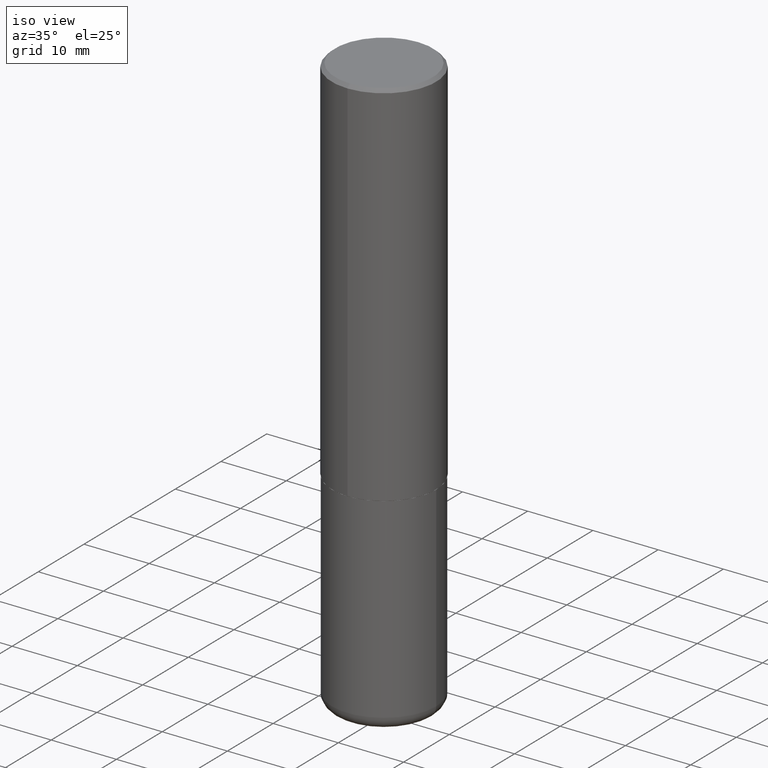
[diagram: clean part render]
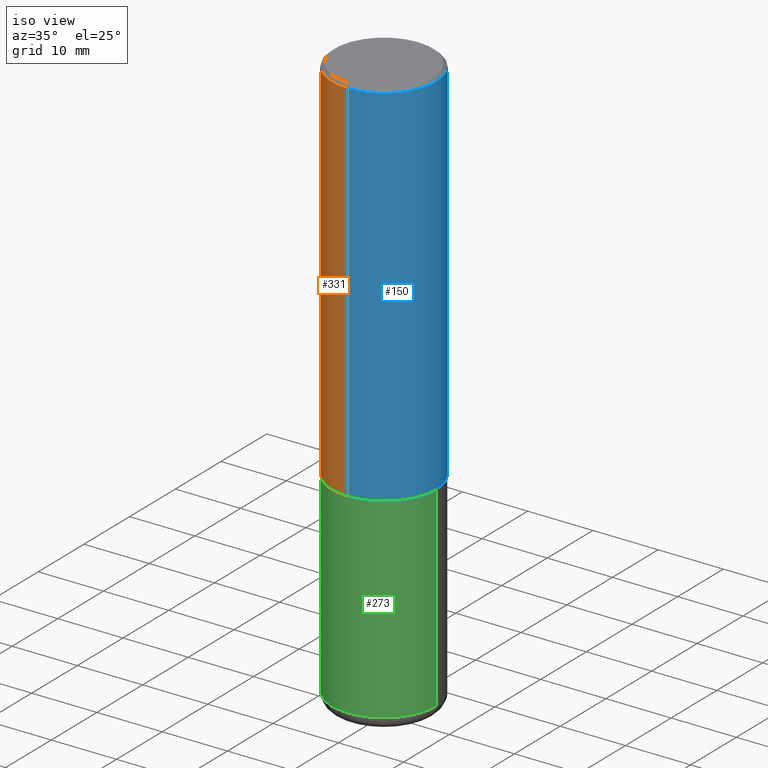
[diagram: same view with three faces highlighted in distinct colors, each labeled with its STEP entity id]
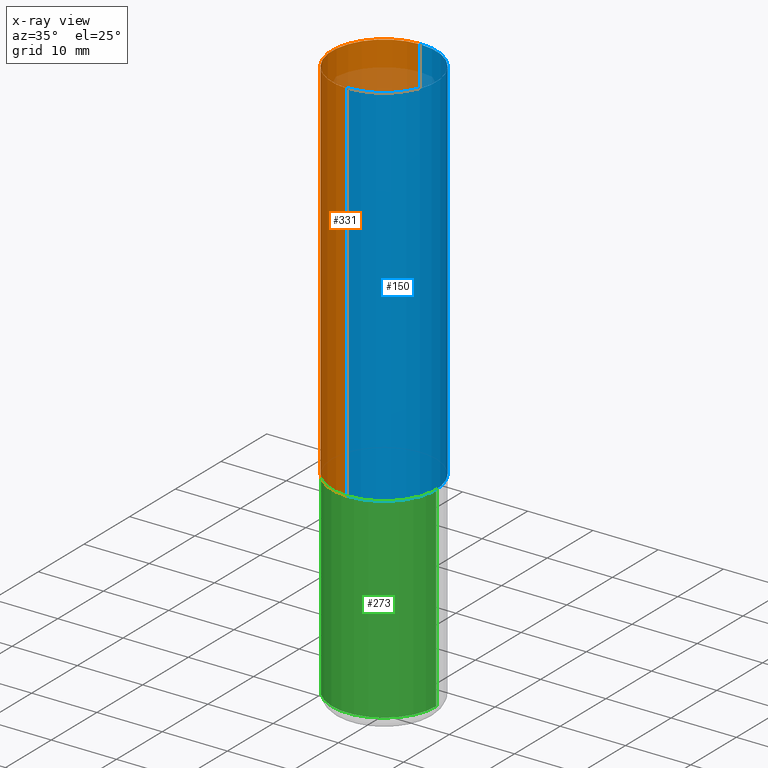
[diagram: x-ray of the same camera — body ghosted, the three highlighted faces saturated]
A machine part, iso view with three faces highlighted in distinct colors.
The next image is the same camera in x-ray (body ghosted, the three faces saturated) — at least one of them is partly hidden behind the body in this view.
Their STEP definitions:

[orange] entity #331 — the highlighted cylindrical surface (partial cylindrical patch) has radius 7.9997 mm, axis along (-0, 0, 1).
#16 = DIRECTION ( 'NONE',  ( -6.982962677686264344E-15, -1.000000000000000000, 3.492006451096414862E-15 ) ) ;
#30 = VECTOR ( 'NONE', #323, 39.37007874015748143 ) ;
#31 = ORIENTED_EDGE ( 'NONE', *, *, #237, .F. ) ;
#41 = CARTESIAN_POINT ( 'NONE',  ( 2.237854346276435985E-15, 0.3149500000000001743, -1.099807431772816467E-15 ) ) ;
#44 = AXIS2_PLACEMENT_3D ( 'NONE', #235, #201, #16 ) ;
#51 = VERTEX_POINT ( 'NONE', #356 ) ;
#54 = EDGE_CURVE ( 'NONE', #262, #51, #314, .T. ) ;
#84 = LINE ( 'NONE', #186, #30 ) ;
#88 = CARTESIAN_POINT ( 'NONE',  ( 2.237854346276464384E-15, 0.3149499999999924027, -2.243100000000000538 ) ) ;
#97 = FACE_OUTER_BOUND ( 'NONE', #156, .T. ) ;
#102 = VECTOR ( 'NONE', #173, 39.37007874015748143 ) ;
#135 = ORIENTED_EDGE ( 'NONE', *, *, #54, .T. ) ;
#154 = AXIS2_PLACEMENT_3D ( 'NONE', #245, #216, #292 ) ;
#156 = EDGE_LOOP ( 'NONE', ( #390, #135, #212, #31 ) ) ;
#158 = LINE ( 'NONE', #41, #102 ) ;
#173 = DIRECTION ( 'NONE',  ( -2.445102122258518808E-29, 3.492006451096415256E-15, 1.000000000000000000 ) ) ;
#186 = CARTESIAN_POINT ( 'NONE',  ( -2.199284095337290265E-15, -0.3149500000000001743, 1.099807431772816467E-15 ) ) ;
#197 = DIRECTION ( 'NONE',  ( -2.445102122258518808E-29, 3.492006451096415256E-15, 1.000000000000000000 ) ) ;
#201 = DIRECTION ( 'NONE',  ( -2.445102122258518808E-29, 3.492006451096415256E-15, 1.000000000000000000 ) ) ;
#203 = EDGE_CURVE ( 'NONE', #262, #274, #158, .T. ) ;
#212 = ORIENTED_EDGE ( 'NONE', *, *, #369, .T. ) ;
#216 = DIRECTION ( 'NONE',  ( -2.445102122258518808E-29, 3.492006451096415256E-15, 1.000000000000000000 ) ) ;
#225 = DIRECTION ( 'NONE',  ( -6.982962677686265922E-15, -1.000000000000000000, 3.469564049740290009E-15 ) ) ;
#235 = CARTESIAN_POINT ( 'NONE',  ( 0.000000000000000000, 0.000000000000000000, 0.000000000000000000 ) ) ;
#237 = EDGE_CURVE ( 'NONE', #274, #277, #345, .T. ) ;
#245 = CARTESIAN_POINT ( 'NONE',  ( 4.890204244517054362E-31, -6.984012902192854425E-17, -0.02000000000000006981 ) ) ;
#262 = VERTEX_POINT ( 'NONE', #88 ) ;
#274 = VERTEX_POINT ( 'NONE', #329 ) ;
#277 = VERTEX_POINT ( 'NONE', #404 ) ;
#292 = DIRECTION ( 'NONE',  ( -6.982962677686265922E-15, -1.000000000000000000, 3.496670018878889100E-15 ) ) ;
#295 = CARTESIAN_POINT ( 'NONE',  ( 5.484608570438081455E-29, -7.832919670454367656E-15, -2.243099999999999206 ) ) ;
#296 = AXIS2_PLACEMENT_3D ( 'NONE', #295, #197, #225 ) ;
#314 = CIRCLE ( 'NONE', #296, 0.3149500000000002853 ) ;
#323 = DIRECTION ( 'NONE',  ( -2.445102122258518808E-29, 3.492006451096415256E-15, 1.000000000000000000 ) ) ;
#329 = CARTESIAN_POINT ( 'NONE',  ( 2.199284095337289871E-15, 0.3149499999999999522, -0.02000000000000116962 ) ) ;
#331 = ADVANCED_FACE ( 'NONE', ( #97 ), #418, .T. ) ;
#345 = CIRCLE ( 'NONE', #154, 0.3149500000000000077 ) ;
#356 = CARTESIAN_POINT ( 'NONE',  ( -2.199284095337236228E-15, -0.3149500000000081124, -2.243099999999998317 ) ) ;
#369 = EDGE_CURVE ( 'NONE', #51, #277, #84, .T. ) ;
#390 = ORIENTED_EDGE ( 'NONE', *, *, #203, .F. ) ;
#404 = CARTESIAN_POINT ( 'NONE',  ( -2.160713844398143363E-15, -0.3149500000000000632, -0.01999999999999896652 ) ) ;
#418 = CYLINDRICAL_SURFACE ( 'NONE', #44, 0.3149500000000001743 ) ;

[blue] entity #150 — the highlighted cylindrical surface (partial cylindrical patch) has radius 7.9997 mm, axis along (-0, 0, 1).
#6 = DIRECTION ( 'NONE',  ( -2.445102122258518808E-29, 3.492006451096415256E-15, 1.000000000000000000 ) ) ;
#18 = DIRECTION ( 'NONE',  ( -2.445102122258518808E-29, 3.492006451096415256E-15, 1.000000000000000000 ) ) ;
#25 = CARTESIAN_POINT ( 'NONE',  ( 4.890204244517054362E-31, -6.984012902192854425E-17, -0.02000000000000006981 ) ) ;
#30 = VECTOR ( 'NONE', #323, 39.37007874015748143 ) ;
#41 = CARTESIAN_POINT ( 'NONE',  ( 2.237854346276435985E-15, 0.3149500000000001743, -1.099807431772816467E-15 ) ) ;
#51 = VERTEX_POINT ( 'NONE', #356 ) ;
#80 = CARTESIAN_POINT ( 'NONE',  ( 5.484608570438081455E-29, -7.832919670454367656E-15, -2.243099999999999206 ) ) ;
#84 = LINE ( 'NONE', #186, #30 ) ;
#88 = CARTESIAN_POINT ( 'NONE',  ( 2.237854346276464384E-15, 0.3149499999999924027, -2.243100000000000538 ) ) ;
#102 = VECTOR ( 'NONE', #173, 39.37007874015748143 ) ;
#117 = AXIS2_PLACEMENT_3D ( 'NONE', #236, #6, #400 ) ;
#150 = ADVANCED_FACE ( 'NONE', ( #169 ), #242, .T. ) ;
#158 = LINE ( 'NONE', #41, #102 ) ;
#169 = FACE_OUTER_BOUND ( 'NONE', #227, .T. ) ;
#173 = DIRECTION ( 'NONE',  ( -2.445102122258518808E-29, 3.492006451096415256E-15, 1.000000000000000000 ) ) ;
#186 = CARTESIAN_POINT ( 'NONE',  ( -2.199284095337290265E-15, -0.3149500000000001743, 1.099807431772816467E-15 ) ) ;
#187 = AXIS2_PLACEMENT_3D ( 'NONE', #80, #18, #349 ) ;
#190 = ORIENTED_EDGE ( 'NONE', *, *, #224, .F. ) ;
#203 = EDGE_CURVE ( 'NONE', #262, #274, #158, .T. ) ;
#224 = EDGE_CURVE ( 'NONE', #277, #274, #411, .T. ) ;
#227 = EDGE_LOOP ( 'NONE', ( #401, #388, #190, #264 ) ) ;
#236 = CARTESIAN_POINT ( 'NONE',  ( 0.000000000000000000, 0.000000000000000000, 0.000000000000000000 ) ) ;
#242 = CYLINDRICAL_SURFACE ( 'NONE', #117, 0.3149500000000001743 ) ;
#248 = DIRECTION ( 'NONE',  ( -6.982962677686265922E-15, -1.000000000000000000, 3.496670018878889100E-15 ) ) ;
#262 = VERTEX_POINT ( 'NONE', #88 ) ;
#264 = ORIENTED_EDGE ( 'NONE', *, *, #369, .F. ) ;
#274 = VERTEX_POINT ( 'NONE', #329 ) ;
#277 = VERTEX_POINT ( 'NONE', #404 ) ;
#323 = DIRECTION ( 'NONE',  ( -2.445102122258518808E-29, 3.492006451096415256E-15, 1.000000000000000000 ) ) ;
#329 = CARTESIAN_POINT ( 'NONE',  ( 2.199284095337289871E-15, 0.3149499999999999522, -0.02000000000000116962 ) ) ;
#349 = DIRECTION ( 'NONE',  ( -6.982962677686265922E-15, -1.000000000000000000, 3.469564049740290009E-15 ) ) ;
#356 = CARTESIAN_POINT ( 'NONE',  ( -2.199284095337236228E-15, -0.3149500000000081124, -2.243099999999998317 ) ) ;
#363 = DIRECTION ( 'NONE',  ( -2.445102122258518808E-29, 3.492006451096415256E-15, 1.000000000000000000 ) ) ;
#367 = CIRCLE ( 'NONE', #187, 0.3149500000000002853 ) ;
#369 = EDGE_CURVE ( 'NONE', #51, #277, #84, .T. ) ;
#385 = EDGE_CURVE ( 'NONE', #51, #262, #367, .T. ) ;
#388 = ORIENTED_EDGE ( 'NONE', *, *, #203, .T. ) ;
#397 = AXIS2_PLACEMENT_3D ( 'NONE', #25, #363, #248 ) ;
#400 = DIRECTION ( 'NONE',  ( -6.982962677686264344E-15, -1.000000000000000000, 3.492006451096414862E-15 ) ) ;
#401 = ORIENTED_EDGE ( 'NONE', *, *, #385, .T. ) ;
#404 = CARTESIAN_POINT ( 'NONE',  ( -2.160713844398143363E-15, -0.3149500000000000632, -0.01999999999999896652 ) ) ;
#411 = CIRCLE ( 'NONE', #397, 0.3149500000000000077 ) ;

[green] entity #273 — the highlighted cylindrical surface (partial cylindrical patch) has radius 7.9997 mm, axis along (-0, 0, 1).
#14 = CARTESIAN_POINT ( 'NONE',  ( 0.000000000000000000, 0.000000000000000000, 0.000000000000000000 ) ) ;
#40 = VERTEX_POINT ( 'NONE', #389 ) ;
#42 = ORIENTED_EDGE ( 'NONE', *, *, #66, .F. ) ;
#49 = CIRCLE ( 'NONE', #289, 0.3149500000000000077 ) ;
#53 = LINE ( 'NONE', #147, #103 ) ;
#63 = DIRECTION ( 'NONE',  ( -2.445468806185136597E-29, 3.491481338843145583E-15, 1.000000000000000000 ) ) ;
#66 = EDGE_CURVE ( 'NONE', #320, #40, #191, .T. ) ;
#99 = EDGE_LOOP ( 'NONE', ( #42, #229, #119, #271 ) ) ;
#103 = VECTOR ( 'NONE', #305, 39.37007874015748143 ) ;
#116 = CARTESIAN_POINT ( 'NONE',  ( 5.487876547960063631E-29, -7.835233272497900762E-15, -2.244099999999999540 ) ) ;
#119 = ORIENTED_EDGE ( 'NONE', *, *, #413, .T. ) ;
#120 = DIRECTION ( 'NONE',  ( -2.445468806185136877E-29, 3.491481338843145188E-15, 1.000000000000000000 ) ) ;
#122 = EDGE_CURVE ( 'NONE', #40, #395, #256, .T. ) ;
#124 = DIRECTION ( 'NONE',  ( -2.445468806185136597E-29, 3.491481338843145583E-15, 1.000000000000000000 ) ) ;
#125 = VECTOR ( 'NONE', #120, 39.37007874015748143 ) ;
#133 = AXIS2_PLACEMENT_3D ( 'NONE', #14, #63, #402 ) ;
#138 = CARTESIAN_POINT ( 'NONE',  ( -0.3149500000000001743, -9.721167535529105379E-15, -3.425199999999999800 ) ) ;
#147 = CARTESIAN_POINT ( 'NONE',  ( 0.3149500000000000077, -2.199284095337289871E-15, 1.535751875536930130E-29 ) ) ;
#168 = EDGE_CURVE ( 'NONE', #320, #381, #49, .T. ) ;
#174 = CYLINDRICAL_SURFACE ( 'NONE', #133, 0.3149500000000000077 ) ;
#191 = LINE ( 'NONE', #298, #125 ) ;
#229 = ORIENTED_EDGE ( 'NONE', *, *, #168, .T. ) ;
#244 = CARTESIAN_POINT ( 'NONE',  ( 8.376219754945329068E-29, -1.195902188180554136E-14, -3.425199999999999800 ) ) ;
#255 = DIRECTION ( 'NONE',  ( -2.445468806185136597E-29, 3.491481338843145583E-15, 1.000000000000000000 ) ) ;
#256 = CIRCLE ( 'NONE', #327, 0.3149500000000000077 ) ;
#271 = ORIENTED_EDGE ( 'NONE', *, *, #122, .F. ) ;
#273 = ADVANCED_FACE ( 'NONE', ( #361 ), #174, .T. ) ;
#283 = CARTESIAN_POINT ( 'NONE',  ( 0.3149500000000001743, -1.415830597714283281E-14, -3.425199999999999800 ) ) ;
#289 = AXIS2_PLACEMENT_3D ( 'NONE', #244, #124, #333 ) ;
#298 = CARTESIAN_POINT ( 'NONE',  ( -0.3149500000000000077, 2.237854346276435590E-15, -1.549218606675782676E-29 ) ) ;
#305 = DIRECTION ( 'NONE',  ( -2.445468806185136877E-29, 3.491481338843145188E-15, 1.000000000000000000 ) ) ;
#320 = VERTEX_POINT ( 'NONE', #138 ) ;
#327 = AXIS2_PLACEMENT_3D ( 'NONE', #116, #255, #386 ) ;
#333 = DIRECTION ( 'NONE',  ( 1.000000000000000000, -6.982962677686269866E-15, 0.000000000000000000 ) ) ;
#361 = FACE_OUTER_BOUND ( 'NONE', #99, .T. ) ;
#381 = VERTEX_POINT ( 'NONE', #283 ) ;
#386 = DIRECTION ( 'NONE',  ( 1.000000000000000000, -6.982962677686263555E-15, 0.000000000000000000 ) ) ;
#389 = CARTESIAN_POINT ( 'NONE',  ( -0.3149500000000000077, -7.659273230875285867E-15, -2.244099999999999540 ) ) ;
#395 = VERTEX_POINT ( 'NONE', #410 ) ;
#402 = DIRECTION ( 'NONE',  ( 1.000000000000000000, -6.982962677686266711E-15, 4.876176775795936353E-29 ) ) ;
#410 = CARTESIAN_POINT ( 'NONE',  ( 0.3149500000000000077, -1.003451736783518906E-14, -2.244099999999999540 ) ) ;
#413 = EDGE_CURVE ( 'NONE', #381, #395, #53, .T. ) ;